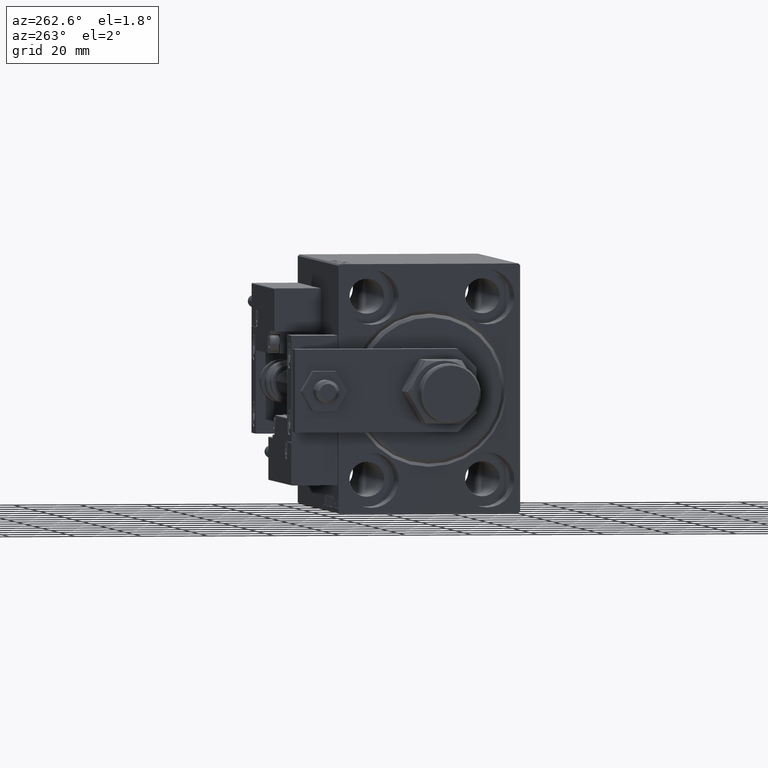
[diagram: clean part render]
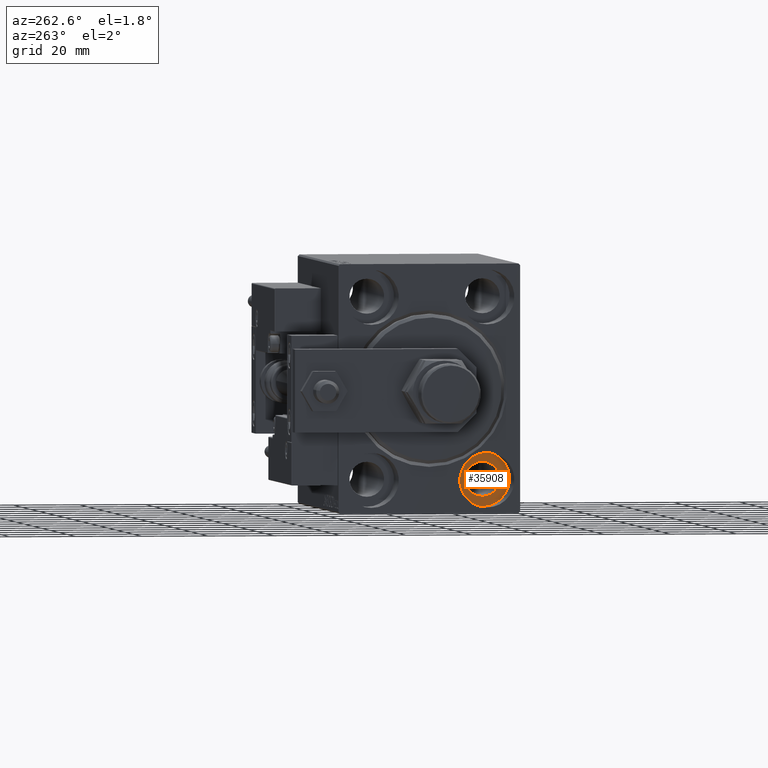
[diagram: same view with one face highlighted and labeled with its STEP entity id]
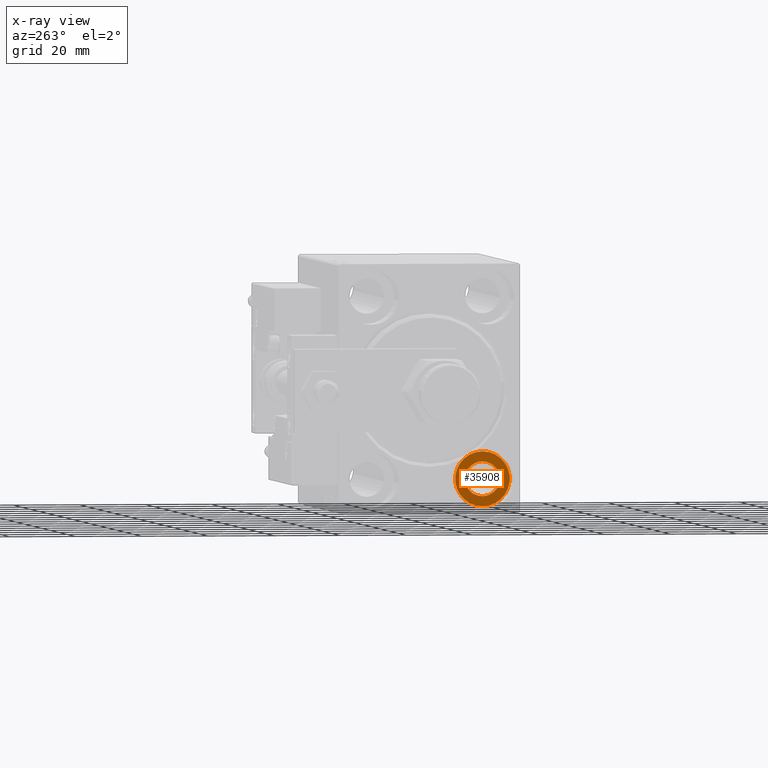
[diagram: x-ray of the same camera — body ghosted, the highlighted face saturated]
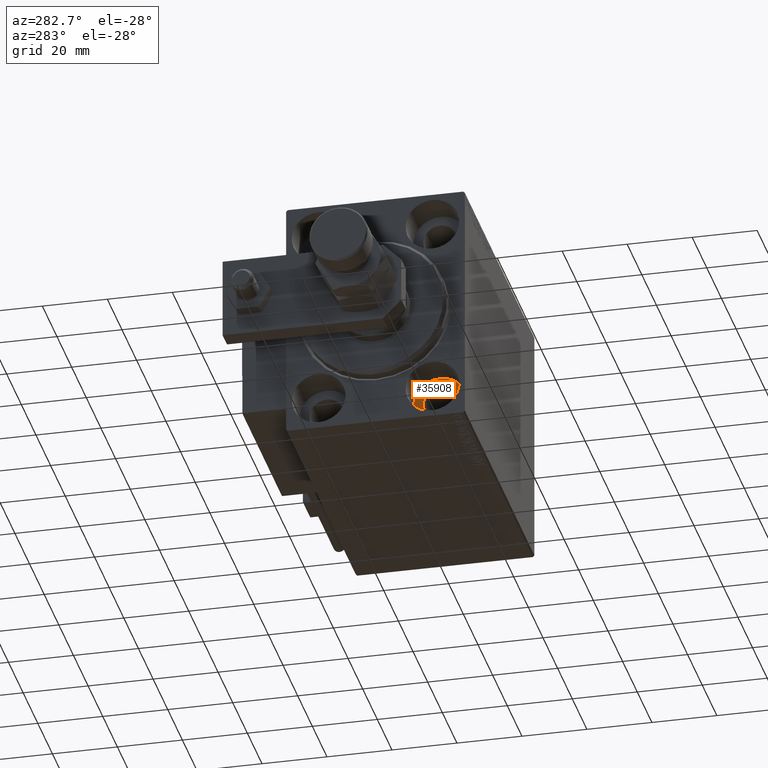
[diagram: same view with one face highlighted and labeled with its STEP entity id]
A machine part, auxiliary view. The second image highlights one B-rep face of the part: STEP entity #35908.
The next image is the same camera in x-ray: the body ghosted, the highlighted face saturated — about 0% of this face is hidden behind the body in this view.
A second angle (auxiliary view) of the same face is appended — the face is thin or edge-on in the first view.
In plain terms, the highlighted planar face has unit normal (-1, 0, 0).
Its self-contained STEP definition (entity closure, byte-faithful):
#108 = CARTESIAN_POINT ( 'NONE',  ( 11.00000000000000000, -17.50000000000000355, -19.25000000000000355 ) ) ;
#1917 = DIRECTION ( 'NONE',  ( 0.000000000000000000, 0.000000000000000000, 1.000000000000000000 ) ) ;
#1950 = CARTESIAN_POINT ( 'NONE',  ( 10.99999999999999645, -17.50000000000000355, -22.25000000000000355 ) ) ;
#2362 = AXIS2_PLACEMENT_3D ( 'NONE', #45717, #22722, #1917 ) ;
#3749 = CIRCLE ( 'NONE', #42041, 5.250000000000000888 ) ;
#5600 = CARTESIAN_POINT ( 'NONE',  ( 11.00000000000000000, 0.000000000000000000, 0.000000000000000000 ) ) ;
#6216 = EDGE_CURVE ( 'NONE', #17268, #33356, #3749, .T. ) ;
#7448 = CARTESIAN_POINT ( 'NONE',  ( 11.00000000000000000, -17.50000000000000355, -27.50000000000000355 ) ) ;
#7450 = DIRECTION ( 'NONE',  ( -1.000000000000000000, 0.000000000000000000, 0.000000000000000000 ) ) ;
#8988 = FACE_OUTER_BOUND ( 'NONE', #36771, .T. ) ;
#9247 = PLANE ( 'NONE',  #12948 ) ;
#9251 = EDGE_CURVE ( 'NONE', #18031, #29322, #19246, .T. ) ;
#12127 = DIRECTION ( 'NONE',  ( 0.000000000000000000, 0.000000000000000000, 1.000000000000000000 ) ) ;
#12948 = AXIS2_PLACEMENT_3D ( 'NONE', #5600, #25121, #24868 ) ;
#13051 = CIRCLE ( 'NONE', #48910, 8.250000000000000000 ) ;
#15511 = CARTESIAN_POINT ( 'NONE',  ( 11.00000000000000000, -17.50000000000000355, -27.50000000000000355 ) ) ;
#17268 = VERTEX_POINT ( 'NONE', #23205 ) ;
#18031 = VERTEX_POINT ( 'NONE', #108 ) ;
#18082 = FACE_BOUND ( 'NONE', #21956, .T. ) ;
#19246 = CIRCLE ( 'NONE', #35882, 8.250000000000000000 ) ;
#19551 = ORIENTED_EDGE ( 'NONE', *, *, #6216, .F. ) ;
#21956 = EDGE_LOOP ( 'NONE', ( #49121, #19551 ) ) ;
#22722 = DIRECTION ( 'NONE',  ( -1.000000000000000000, 0.000000000000000000, 0.000000000000000000 ) ) ;
#23205 = CARTESIAN_POINT ( 'NONE',  ( 10.99999999999999645, -17.50000000000000355, -32.75000000000000000 ) ) ;
#24106 = DIRECTION ( 'NONE',  ( -1.000000000000000000, 0.000000000000000000, 0.000000000000000000 ) ) ;
#24868 = DIRECTION ( 'NONE',  ( 0.000000000000000000, 0.000000000000000000, 1.000000000000000000 ) ) ;
#25121 = DIRECTION ( 'NONE',  ( -1.000000000000000000, 0.000000000000000000, 0.000000000000000000 ) ) ;
#25496 = CARTESIAN_POINT ( 'NONE',  ( 11.00000000000000000, -17.50000000000000355, -35.75000000000000711 ) ) ;
#28397 = ORIENTED_EDGE ( 'NONE', *, *, #39875, .T. ) ;
#28932 = CIRCLE ( 'NONE', #2362, 5.250000000000000888 ) ;
#29322 = VERTEX_POINT ( 'NONE', #25496 ) ;
#30784 = ORIENTED_EDGE ( 'NONE', *, *, #9251, .T. ) ;
#33356 = VERTEX_POINT ( 'NONE', #1950 ) ;
#34580 = DIRECTION ( 'NONE',  ( 0.000000000000000000, 0.000000000000000000, 1.000000000000000000 ) ) ;
#34820 = CARTESIAN_POINT ( 'NONE',  ( 10.99999999999999645, -17.50000000000000355, -27.50000000000000355 ) ) ;
#35882 = AXIS2_PLACEMENT_3D ( 'NONE', #15511, #7450, #34580 ) ;
#35908 = ADVANCED_FACE ( 'NONE', ( #18082, #8988 ), #9247, .T. ) ;
#36771 = EDGE_LOOP ( 'NONE', ( #30784, #28397 ) ) ;
#39875 = EDGE_CURVE ( 'NONE', #29322, #18031, #13051, .T. ) ;
#41593 = EDGE_CURVE ( 'NONE', #33356, #17268, #28932, .T. ) ;
#42041 = AXIS2_PLACEMENT_3D ( 'NONE', #34820, #50764, #46839 ) ;
#45717 = CARTESIAN_POINT ( 'NONE',  ( 10.99999999999999645, -17.50000000000000355, -27.50000000000000355 ) ) ;
#46839 = DIRECTION ( 'NONE',  ( 0.000000000000000000, 0.000000000000000000, 1.000000000000000000 ) ) ;
#48910 = AXIS2_PLACEMENT_3D ( 'NONE', #7448, #24106, #12127 ) ;
#49121 = ORIENTED_EDGE ( 'NONE', *, *, #41593, .F. ) ;
#50764 = DIRECTION ( 'NONE',  ( -1.000000000000000000, 0.000000000000000000, 0.000000000000000000 ) ) ;